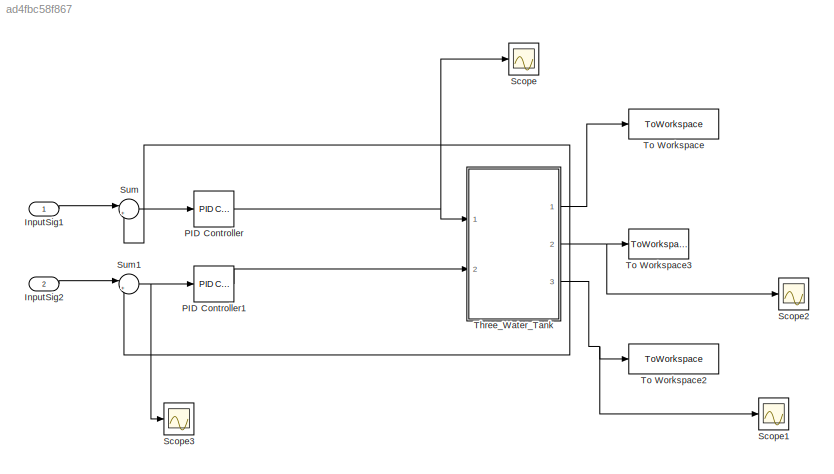
MODEL slx_ad4fbc58f867
KIND model
CONFIG AbsTol = auto
CONFIG EnableMultiTasking = off
CONFIG FixedStep = auto
CONFIG MaxStep = auto
CONFIG MinStep = auto
CONFIG RelTol = 1e-3
CONFIG SampleTimeConstraint = Unconstrained
CONFIG Solver = VariableStepAuto
CONFIG SolverName = VariableStepAuto
CONFIG StartTime = 0.0
CONFIG StopTime = 58020
BLOCK [Inport] InputSig1
  IconDisplay = Port number
BLOCK [Inport] InputSig2
  IconDisplay = Port number
  Port = 2
BLOCK [Reference] PID Controller  REF=simulink/Continuous/PID Controller
  Ports = [1, 1]
  SourceBlock = simulink/Continuous/PID Controller
  SourceProductBaseCode = SL
  SourceType = PID 1dof
BLOCK [Reference] PID Controller1  REF=simulink/Continuous/PID Controller
  Ports = [1, 1]
  SourceBlock = simulink/Continuous/PID Controller
  SourceProductBaseCode = SL
  SourceType = PID 1dof
BLOCK [Scope] Scope
  NumInputPorts = 1
  Ports = [1]
  ScopeSpecificationString = Simulink.scopes.TimeScopeBlockCfg('CurrentConfiguration', extmgr.ConfigurationSet(extmgr.Configuration('Core','General UI',true),extmgr.Configuration('Core','Source UI',true),extmgr.Configuration('Sources','WiredSimulink',true),extmgr.Configuration('Visuals','Time Domain',true,'SerializedDisplays',{struct('MinYLimReal','-382.80431','MaxYLimReal','10299.897','YLabelReal','','MinYLimMag',' 0.00000',...<+1427ch>
BLOCK [Scope] Scope1
  NumInputPorts = 1
  Ports = [1]
  ScopeSpecificationString = Simulink.scopes.TimeScopeBlockCfg('CurrentConfiguration', extmgr.ConfigurationSet(extmgr.Configuration('Core','General UI',true),extmgr.Configuration('Core','Source UI',true),extmgr.Configuration('Sources','WiredSimulink',true,'DataLoggingVariableName','ScopeData1'),extmgr.Configuration('Visuals','Time Domain',true,'SerializedDisplays',{struct('MinYLimReal','-43.61276','MaxYLimReal','243.02091','Y...<+1769ch>
BLOCK [Scope] Scope2
  NumInputPorts = 1
  Ports = [1]
  ScopeSpecificationString = Simulink.scopes.TimeScopeBlockCfg('CurrentConfiguration', extmgr.ConfigurationSet(extmgr.Configuration('Core','General UI',true),extmgr.Configuration('Core','Source UI',true),extmgr.Configuration('Sources','WiredSimulink',true,'DataLoggingVariableName','ScopeData2'),extmgr.Configuration('Visuals','Time Domain',true,'SerializedDisplays',{struct('MinYLimReal','-1253.90868','MaxYLimReal','223.42327',...<+1494ch>
BLOCK [Scope] Scope3
  NumInputPorts = 1
  Ports = [1]
  ScopeSpecificationString = Simulink.scopes.TimeScopeBlockCfg('CurrentConfiguration', extmgr.ConfigurationSet(extmgr.Configuration('Core','General UI',true),extmgr.Configuration('Core','Source UI',true),extmgr.Configuration('Sources','WiredSimulink',true,'DataLoggingVariableName','ScopeData2'),extmgr.Configuration('Visuals','Time Domain',true,'SerializedDisplays',{struct('MinYLimReal','-43.61276','MaxYLimReal','243.02091','Y...<+1729ch>
BLOCK [Sum] Sum
  IconShape = round
  InputSameDT = off
  Inputs = |+-
  OutDataTypeStr = Inherit: Inherit via internal rule
  Ports = [2, 1]
  SaturateOnIntegerOverflow = off
BLOCK [Sum] Sum1
  IconShape = round
  InputSameDT = off
  Inputs = |+-
  OutDataTypeStr = Inherit: Inherit via internal rule
  Ports = [2, 1]
  SaturateOnIntegerOverflow = off
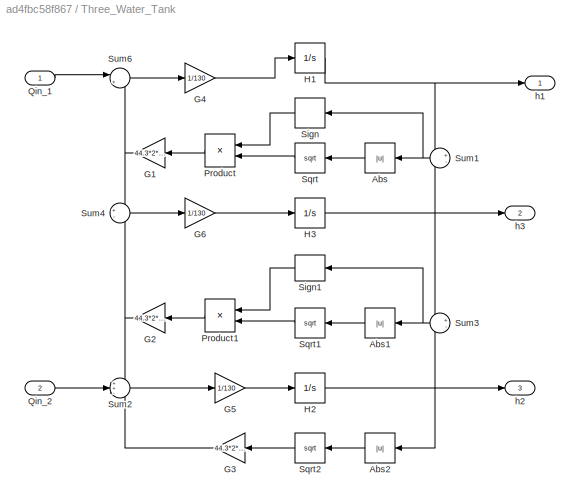
BLOCK [SubSystem] Three_Water_Tank
  Ports = [2, 3]
  RequestExecContextInheritance = off
  Variant = off
BLOCK [Abs] Three_Water_Tank/Abs
  SaturateOnIntegerOverflow = off
  ZeroCross = off
BLOCK [Abs] Three_Water_Tank/Abs1
  SaturateOnIntegerOverflow = off
  ZeroCross = off
BLOCK [Abs] Three_Water_Tank/Abs2
  SaturateOnIntegerOverflow = off
  ZeroCross = off
BLOCK [Gain] Three_Water_Tank/G1
  Gain = 44.3*2*0.6
  OutDataTypeStr = Inherit: Inherit via internal rule
  ParamDataTypeStr = Inherit: Inherit via internal rule
  SaturateOnIntegerOverflow = off
BLOCK [Gain] Three_Water_Tank/G2
  Gain = 44.3*2*0.6
  OutDataTypeStr = Inherit: Inherit via internal rule
  ParamDataTypeStr = Inherit: Inherit via internal rule
  SaturateOnIntegerOverflow = off
BLOCK [Gain] Three_Water_Tank/G3
  Gain = 44.3*2*0.6
  OutDataTypeStr = Inherit: Inherit via internal rule
  ParamDataTypeStr = Inherit: Inherit via internal rule
  SaturateOnIntegerOverflow = off
BLOCK [Gain] Three_Water_Tank/G4
  Gain = 1/130
  OutDataTypeStr = Inherit: Inherit via internal rule
  ParamDataTypeStr = Inherit: Inherit via internal rule
  SaturateOnIntegerOverflow = off
BLOCK [Gain] Three_Water_Tank/G5
  Gain = 1/130
  OutDataTypeStr = Inherit: Inherit via internal rule
  ParamDataTypeStr = Inherit: Inherit via internal rule
  SaturateOnIntegerOverflow = off
BLOCK [Gain] Three_Water_Tank/G6
  Gain = 1/130
  OutDataTypeStr = Inherit: Inherit via internal rule
  ParamDataTypeStr = Inherit: Inherit via internal rule
  SaturateOnIntegerOverflow = off
BLOCK [Integrator] Three_Water_Tank/H1
  InitialCondition = 0.0001
  Ports = [1, 1]
BLOCK [Integrator] Three_Water_Tank/H2
  InitialCondition = 0.001
  Ports = [1, 1]
BLOCK [Integrator] Three_Water_Tank/H3
  InitialCondition = 0.0001
  Ports = [1, 1]
BLOCK [Product] Three_Water_Tank/Product
  InputSameDT = off
  OutDataTypeStr = Inherit: Inherit via internal rule
  Ports = [2, 1]
  RndMeth = Floor
  SaturateOnIntegerOverflow = off
BLOCK [Product] Three_Water_Tank/Product1
  InputSameDT = off
  OutDataTypeStr = Inherit: Inherit via internal rule
  Ports = [2, 1]
  RndMeth = Floor
  SaturateOnIntegerOverflow = off
BLOCK [Inport] Three_Water_Tank/Qin_1
  IconDisplay = Port number
  PortDimensions = 1
  SampleTime = 1
BLOCK [Inport] Three_Water_Tank/Qin_2
  IconDisplay = Port number
  Port = 2
  PortDimensions = 1
  SampleTime = 1
BLOCK [Signum] Three_Water_Tank/Sign
  ZeroCross = off
BLOCK [Signum] Three_Water_Tank/Sign1
  ZeroCross = off
BLOCK [Sqrt] Three_Water_Tank/Sqrt
BLOCK [Sqrt] Three_Water_Tank/Sqrt1
BLOCK [Sqrt] Three_Water_Tank/Sqrt2
BLOCK [Sum] Three_Water_Tank/Sum1
  IconShape = round
  InputSameDT = off
  Inputs = +-
  OutDataTypeStr = Inherit: Inherit via internal rule
  Ports = [2, 1]
  SaturateOnIntegerOverflow = off
BLOCK [Sum] Three_Water_Tank/Sum2
  IconShape = round
  InputSameDT = off
  Inputs = ++-
  OutDataTypeStr = Inherit: Inherit via internal rule
  Ports = [3, 1]
  SaturateOnIntegerOverflow = off
BLOCK [Sum] Three_Water_Tank/Sum3
  IconShape = round
  InputSameDT = off
  Inputs = +-
  OutDataTypeStr = Inherit: Inherit via internal rule
  Ports = [2, 1]
  SaturateOnIntegerOverflow = off
BLOCK [Sum] Three_Water_Tank/Sum4
  IconShape = round
  InputSameDT = off
  Inputs = +-
  OutDataTypeStr = Inherit: Inherit via internal rule
  Ports = [2, 1]
  SaturateOnIntegerOverflow = off
BLOCK [Sum] Three_Water_Tank/Sum6
  IconShape = round
  InputSameDT = off
  Inputs = |+-
  OutDataTypeStr = Inherit: Inherit via internal rule
  Ports = [2, 1]
  SaturateOnIntegerOverflow = off
BLOCK [Outport] Three_Water_Tank/h1
  IconDisplay = Port number
  PortDimensions = 1
  SampleTime = 1
BLOCK [Outport] Three_Water_Tank/h2
  IconDisplay = Port number
  Port = 3
  PortDimensions = 1
  SampleTime = 1
BLOCK [Outport] Three_Water_Tank/h3
  IconDisplay = Port number
  Port = 2
  PortDimensions = 1
  SampleTime = 1
BLOCK [ToWorkspace] To Workspace
  FixptAsFi = on
  MaxDataPoints = inf
  Ports = [1]
  SampleTime = -1
  Save2DSignal = 3-D array (concatenate along third dimension)
  SaveFormat = Timeseries
  VariableName = h1
BLOCK [ToWorkspace] To Workspace2
  FixptAsFi = on
  MaxDataPoints = inf
  Ports = [1]
  SampleTime = -1
  Save2DSignal = 3-D array (concatenate along third dimension)
  SaveFormat = Timeseries
  VariableName = h2
BLOCK [ToWorkspace] To Workspace3
  FixptAsFi = on
  MaxDataPoints = inf
  Ports = [1]
  SampleTime = -1
  Save2DSignal = 3-D array (concatenate along third dimension)
  SaveFormat = Timeseries
  VariableName = simout
LINE InputSig1:1 -> Sum:1
LINE InputSig2:1 -> Sum1:1
LINE PID Controller1:1 -> Three_Water_Tank:2
NET PID Controller:1 -> Scope:1, Three_Water_Tank:1
NET Sum1:1 -> PID Controller1:1, Scope3:1
LINE Sum:1 -> PID Controller:1
LINE Three_Water_Tank/Abs1:1 -> Three_Water_Tank/Sqrt1:1
LINE Three_Water_Tank/Abs2:1 -> Three_Water_Tank/Sqrt2:1
LINE Three_Water_Tank/Abs:1 -> Three_Water_Tank/Sqrt:1
NET Three_Water_Tank/G1:1 -> Three_Water_Tank/Sum4:1, Three_Water_Tank/Sum6:2
NET Three_Water_Tank/G2:1 -> Three_Water_Tank/Sum2:1, Three_Water_Tank/Sum4:2
LINE Three_Water_Tank/G3:1 -> Three_Water_Tank/Sum2:3
LINE Three_Water_Tank/G4:1 -> Three_Water_Tank/H1:1
LINE Three_Water_Tank/G5:1 -> Three_Water_Tank/H2:1
LINE Three_Water_Tank/G6:1 -> Three_Water_Tank/H3:1
NET Three_Water_Tank/H1:1 -> Three_Water_Tank/Sum1:1, Three_Water_Tank/h1:1
NET Three_Water_Tank/H2:1 -> Three_Water_Tank/Abs2:1, Three_Water_Tank/Sum3:2, Three_Water_Tank/h2:1
NET Three_Water_Tank/H3:1 -> Three_Water_Tank/Sum1:2, Three_Water_Tank/Sum3:1, Three_Water_Tank/h3:1
LINE Three_Water_Tank/Product1:1 -> Three_Water_Tank/G2:1
LINE Three_Water_Tank/Product:1 -> Three_Water_Tank/G1:1
LINE Three_Water_Tank/Qin_1:1 -> Three_Water_Tank/Sum6:1
LINE Three_Water_Tank/Qin_2:1 -> Three_Water_Tank/Sum2:2
LINE Three_Water_Tank/Sign1:1 -> Three_Water_Tank/Product1:1
LINE Three_Water_Tank/Sign:1 -> Three_Water_Tank/Product:1
LINE Three_Water_Tank/Sqrt1:1 -> Three_Water_Tank/Product1:2
LINE Three_Water_Tank/Sqrt2:1 -> Three_Water_Tank/G3:1
LINE Three_Water_Tank/Sqrt:1 -> Three_Water_Tank/Product:2
NET Three_Water_Tank/Sum1:1 -> Three_Water_Tank/Abs:1, Three_Water_Tank/Sign:1
LINE Three_Water_Tank/Sum2:1 -> Three_Water_Tank/G5:1
NET Three_Water_Tank/Sum3:1 -> Three_Water_Tank/Abs1:1, Three_Water_Tank/Sign1:1
LINE Three_Water_Tank/Sum4:1 -> Three_Water_Tank/G6:1
LINE Three_Water_Tank/Sum6:1 -> Three_Water_Tank/G4:1
LINE Three_Water_Tank:1 -> To Workspace:1
NET Three_Water_Tank:2 -> Scope2:1, Sum1:2, Sum:2, To Workspace3:1
NET Three_Water_Tank:3 -> Scope1:1, To Workspace2:1
note: NET lines group one-source signal fan-out (src -> all destinations, sorted); 1:1 wires keep LINE
